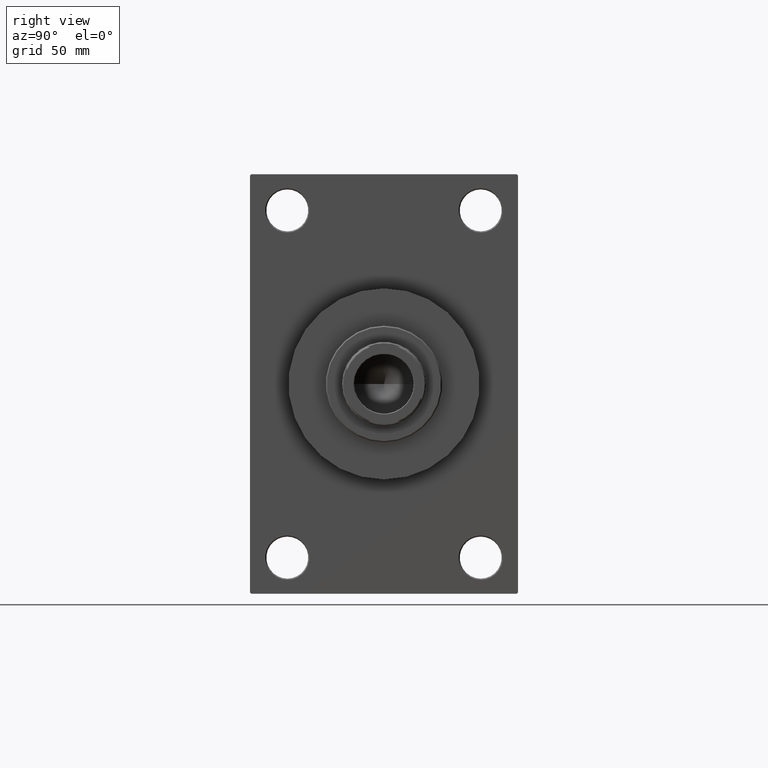
[diagram: clean part render]
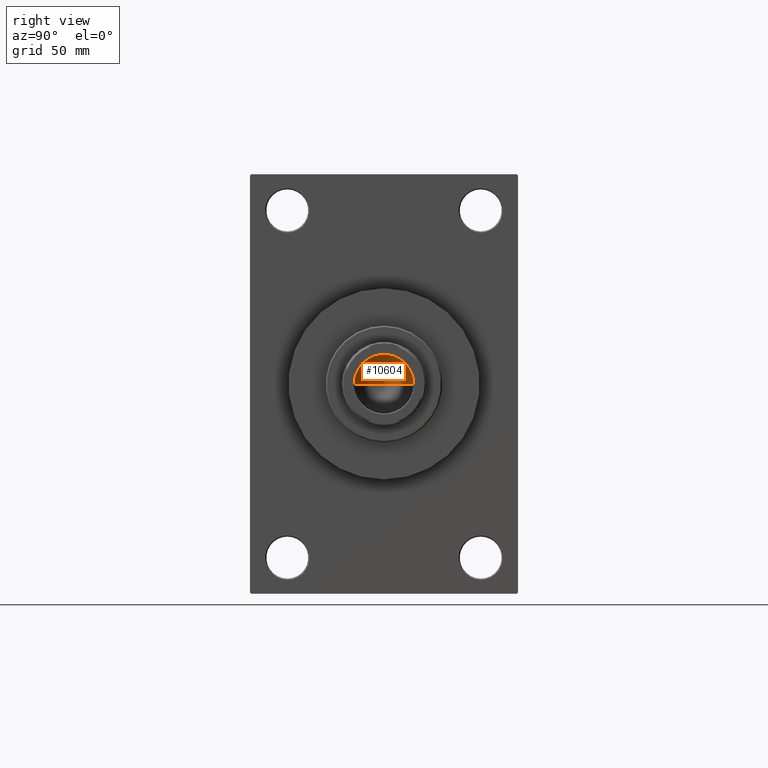
[diagram: same view with one face highlighted and labeled with its STEP entity id]
A machine part, right view. The second image highlights one B-rep face of the part: STEP entity #10604.
In plain terms, the highlighted conical surface has half-angle 59 deg.
Its self-contained STEP definition (entity closure, byte-faithful):
#965 = VECTOR ( 'NONE', #6283, 1000.000000000000000 ) ;
#1065 = DIRECTION ( 'NONE',  ( -0.8571673007021117785, 1.049727191138617956E-16, 0.5150380749100550437 ) ) ;
#4451 = CARTESIAN_POINT ( 'NONE',  ( -12.74999999999998934, 1.561424668912873928E-15, 121.0000000000000142 ) ) ;
#4988 = EDGE_CURVE ( 'NONE', #20177, #22575, #31827, .T. ) ;
#5022 = CARTESIAN_POINT ( 'NONE',  ( -1.410643066818227497E-14, 0.000000000000000000, 113.3390271073986071 ) ) ;
#6283 = DIRECTION ( 'NONE',  ( 0.8571673007021117785, 0.000000000000000000, 0.5150380749100550437 ) ) ;
#7117 = EDGE_CURVE ( 'NONE', #18774, #22575, #29515, .T. ) ;
#8744 = AXIS2_PLACEMENT_3D ( 'NONE', #19602, #15969, #30662 ) ;
#9910 = CARTESIAN_POINT ( 'NONE',  ( 12.74999999999998934, 0.000000000000000000, 121.0000000000000142 ) ) ;
#10604 = ADVANCED_FACE ( 'NONE', ( #18064 ), #46558, .F. ) ;
#11314 = CARTESIAN_POINT ( 'NONE',  ( -12.74999999999998934, 1.561424668912873928E-15, 121.0000000000000142 ) ) ;
#12539 = ORIENTED_EDGE ( 'NONE', *, *, #7117, .T. ) ;
#14439 = DIRECTION ( 'NONE',  ( 1.000000000000000000, 0.000000000000000000, 0.000000000000000000 ) ) ;
#15969 = DIRECTION ( 'NONE',  ( -0.000000000000000000, -0.000000000000000000, 1.000000000000000000 ) ) ;
#18064 = FACE_OUTER_BOUND ( 'NONE', #27558, .T. ) ;
#18774 = VERTEX_POINT ( 'NONE', #11314 ) ;
#19602 = CARTESIAN_POINT ( 'NONE',  ( 0.000000000000000000, 0.000000000000000000, 121.0000000000000142 ) ) ;
#20177 = VERTEX_POINT ( 'NONE', #5022 ) ;
#21870 = ORIENTED_EDGE ( 'NONE', *, *, #27477, .T. ) ;
#22575 = VERTEX_POINT ( 'NONE', #46569 ) ;
#24510 = VECTOR ( 'NONE', #1065, 1000.000000000000000 ) ;
#25304 = ORIENTED_EDGE ( 'NONE', *, *, #4988, .F. ) ;
#26378 = LINE ( 'NONE', #4451, #24510 ) ;
#27477 = EDGE_CURVE ( 'NONE', #20177, #18774, #26378, .T. ) ;
#27558 = EDGE_LOOP ( 'NONE', ( #25304, #21870, #12539 ) ) ;
#29515 = CIRCLE ( 'NONE', #8744, 12.74999999999998934 ) ;
#30662 = DIRECTION ( 'NONE',  ( 1.000000000000000000, 0.000000000000000000, 0.000000000000000000 ) ) ;
#31827 = LINE ( 'NONE', #9910, #965 ) ;
#31920 = AXIS2_PLACEMENT_3D ( 'NONE', #32741, #40238, #14439 ) ;
#32741 = CARTESIAN_POINT ( 'NONE',  ( 0.000000000000000000, 0.000000000000000000, 121.0000000000000142 ) ) ;
#40238 = DIRECTION ( 'NONE',  ( -0.000000000000000000, -0.000000000000000000, 1.000000000000000000 ) ) ;
#46558 = CONICAL_SURFACE ( 'NONE', #31920, 12.74999999999998934, 1.029744258676653423 ) ;
#46569 = CARTESIAN_POINT ( 'NONE',  ( 12.74999999999998934, 0.000000000000000000, 121.0000000000000142 ) ) ;